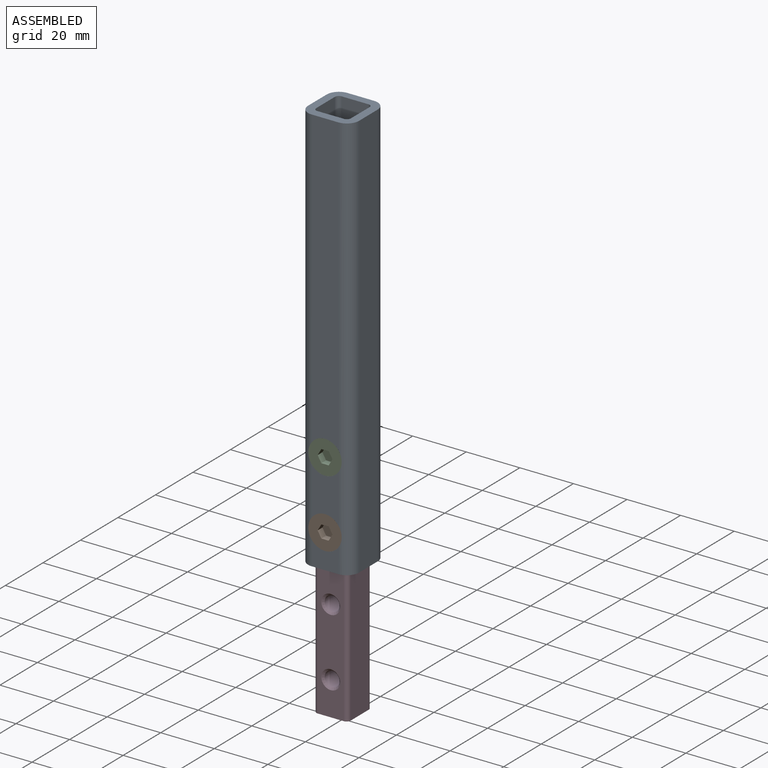
[diagram: assembled view]
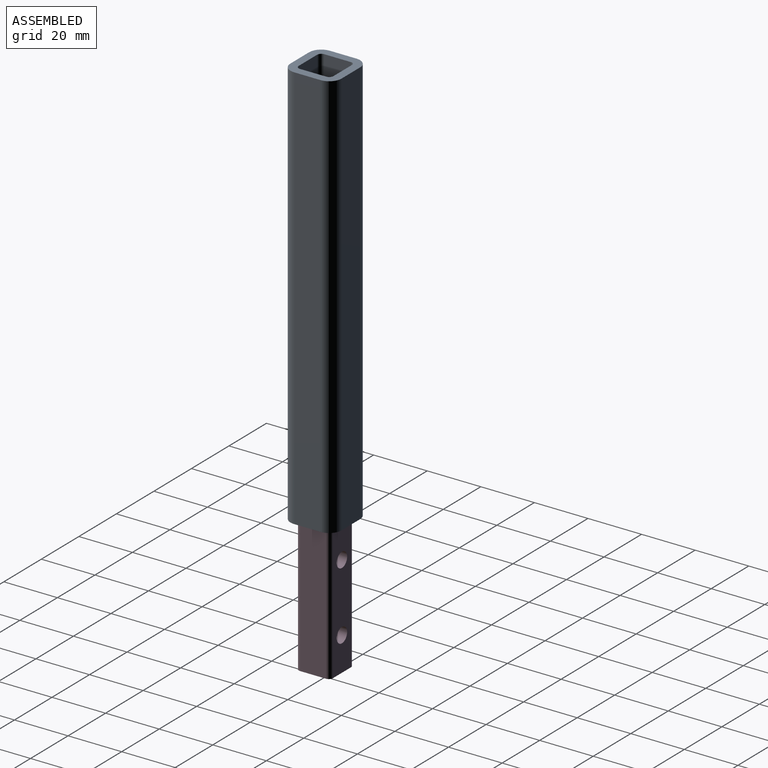
[diagram: assembled view, second angle]
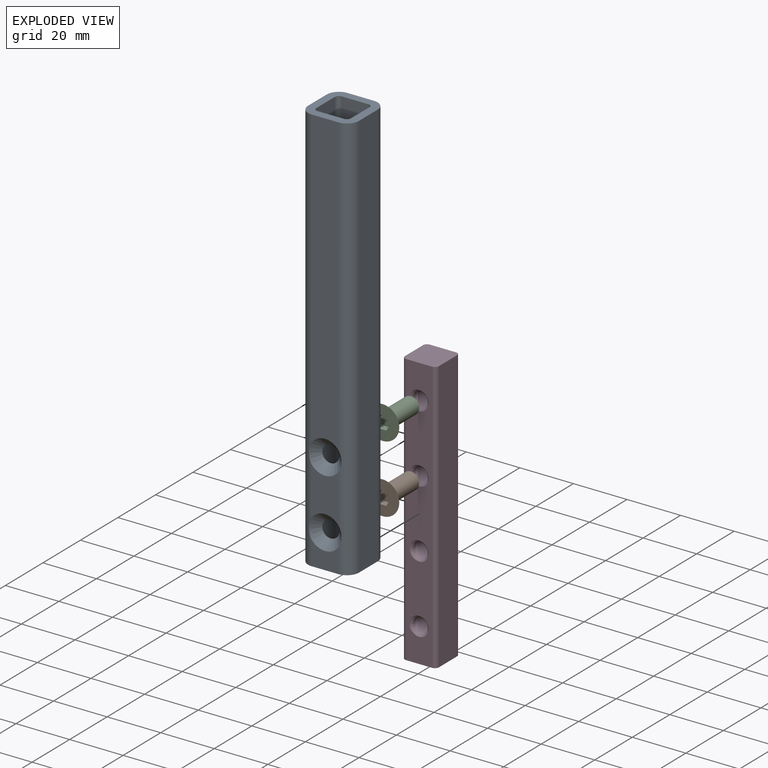
[diagram: exploded view]
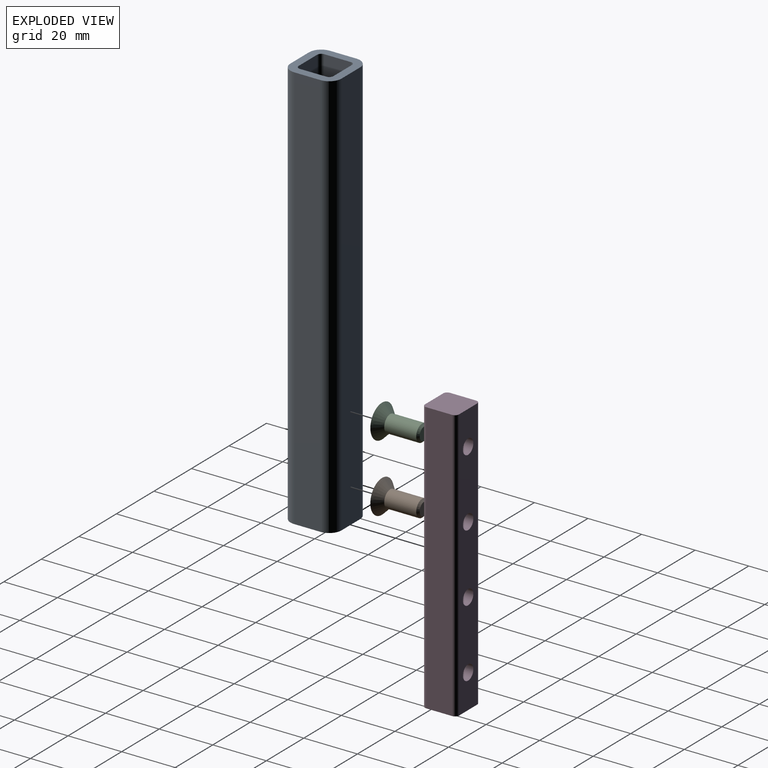
[diagram: exploded view, second angle]
ASSEMBLY  parts=4 mates=3
PART A: 22 faces, bbox 19.1x19.1x152.4 mm
  f0: plane 9.91x8.93mm, normal (0,-1,0), area 71.5mm2, adj f15,f16,f18,f21
  f1: plane 17.87x9.91mm, normal (0,-1,0), area 143mm2, adj f16,f17,f18,f21
  f2: plane 110.53x9.91mm, normal (0,-1,0), area 1077.9mm2, adj f14,f17,f18,f21
  f3: plane 152.4x9.91mm, normal (1,0,0), area 1509.7mm2, adj f14,f15,f18,f19
  f4: plane 152.4x9.91mm, normal (0,1,0), area 1509.7mm2, adj f14,f15,f19,f20
  f5: cylinder r=1.52mm len=152.4mm, axis (0,0,-1), area 364.8mm2, adj f6,f12,f14,f15
  f6: plane 152.4x9.91mm, normal (-1,0,0), area 1509.7mm2, adj f5,f7,f14,f15
  f7: cylinder r=1.52mm len=152.4mm, axis (0,0,-1), area 364.8mm2, adj f6,f8,f14,f15
  f8: plane 152.4x9.91mm, normal (0,1,0), area 1446.3mm2, adj f7,f9,f14,f15,f16,f17
  f9: cylinder r=1.52mm len=152.4mm, axis (0,0,-1), area 364.8mm2, adj f8,f10,f14,f15
  f10: plane 152.4x9.91mm, normal (1,0,0), area 1509.7mm2, adj f9,f11,f14,f15
  f11: cylinder r=1.52mm len=152.4mm, axis (0,0,-1), area 364.8mm2, adj f10,f12,f14,f15
  f12: plane 152.4x9.91mm, normal (0,-1,0), area 1509.7mm2, adj f5,f11,f14,f15
  f13: plane 152.4x9.91mm, normal (-1,0,0), area 1509.7mm2, adj f14,f15,f20,f21
  f14: plane 19.05x19.05mm, normal (0,0,1), area 179.1mm2, adj f2,f3,f4,f5,f6,f7,f8,f9
  f15: plane 19.05x19.05mm, normal (0,0,-1), area 179.1mm2, adj f0,f3,f4,f5,f6,f7,f8,f9
  f16: cone r=6.22mm half-angle=45deg, axis (0,-1,0), area 125.5mm2, adj f0,f1,f8,f18,f21
  f17: cone r=6.22mm half-angle=45deg, axis (0,-1,0), area 125.5mm2, adj f1,f2,f8,f18,f21
  f18: cylinder r=4.57mm len=152.4mm, axis (0,0,1), area 1082.6mm2, adj f0,f1,f2,f3,f14,f15,f16,f17
  f19: cylinder r=4.57mm len=152.4mm, axis (0,0,-1), area 1094.5mm2, adj f3,f4,f14,f15
  f20: cylinder r=4.57mm len=152.4mm, axis (0,0,1), area 1094.5mm2, adj f4,f13,f14,f15
  f21: cylinder r=4.57mm len=152.4mm, axis (0,0,-1), area 1082.6mm2, adj f0,f1,f2,f13,f14,f15,f16,f17
PART B: 12 faces, bbox 12.4x12.4x15.7 mm
  f0: plane 12.45x12.45mm, normal (0,0,1), area 102mm2, adj f3,f4,f5,f6,f7,f8,f9
  f1: cylinder r=3.17mm len=11.94mm, axis (0,0,1), area 238.2mm2, adj f3,f11
  f2: plane 4.83x4.83mm, normal (0,0,-1), area 18.3mm2, adj f11
  f3: cone r=3.17mm half-angle=45deg, axis (0,0,1), area 127.3mm2, adj f0,f1
  f4: plane 2.75x2.54mm, normal (0,-1,0), area 7mm2, adj f0,f5,f9,f10
  f5: plane 2.54x2.38mm, normal (0.87,-0.5,0), area 7mm2, adj f0,f4,f6,f10
  f6: plane 2.54x2.38mm, normal (0.87,0.5,0), area 7mm2, adj f0,f5,f7,f10
  f7: plane 2.75x2.54mm, normal (0,1,0), area 7mm2, adj f0,f6,f8,f10
  f8: plane 2.54x2.38mm, normal (-0.87,0.5,0), area 7mm2, adj f0,f7,f9,f10
  f9: plane 2.54x2.38mm, normal (-0.87,-0.5,0), area 7mm2, adj f0,f4,f8,f10
  f10: plane 5.5x4.76mm, normal (0,0,1), area 19.6mm2, adj f4,f5,f6,f7,f8,f9
  f11: cone r=3.17mm half-angle=45deg, axis (0,0,1), area 18.9mm2, adj f1,f2
PART C: same geometry as B
PART D: 18 faces, bbox 12.7x12.7x101.6 mm
  f0: plane 101.6x9.65mm, normal (1,0,0), area 980.6mm2, adj f1,f7,f8,f9
  f1: cylinder r=1.52mm len=101.6mm, axis (0,0,-1), area 243.2mm2, adj f0,f2,f8,f9
  f2: plane 101.6x9.65mm, normal (0,1,0), area 884.3mm2, adj f1,f3,f8,f9,f10,f11,f12,f13
  f3: cylinder r=1.52mm len=101.6mm, axis (0,0,-1), area 243.2mm2, adj f2,f4,f8,f9
  f4: plane 101.6x9.65mm, normal (-1,0,0), area 980.6mm2, adj f3,f5,f8,f9
  f5: cylinder r=1.52mm len=101.6mm, axis (0,0,-1), area 243.2mm2, adj f4,f6,f8,f9
  f6: plane 101.6x9.65mm, normal (0,-1,0), area 824mm2, adj f5,f7,f8,f9,f14,f15,f16,f17
  f7: cylinder r=1.52mm len=101.6mm, axis (0,0,-1), area 243.2mm2, adj f0,f6,f8,f9
  f8: plane 12.7x12.7mm, normal (0,0,1), area 159.3mm2, adj f0,f1,f2,f3,f4,f5,f6,f7
  f9: plane 12.7x12.7mm, normal (0,0,-1), area 159.3mm2, adj f0,f1,f2,f3,f4,f5,f6,f7
  f10: cylinder r=2.77mm len=11.94mm, axis (0,-1,0), area 207.7mm2, adj f2,f14
  f11: cylinder r=2.77mm len=11.94mm, axis (0,-1,0), area 207.7mm2, adj f2,f15
  f12: cylinder r=2.77mm len=11.94mm, axis (0,-1,0), area 207.7mm2, adj f2,f17
  f13: cylinder r=2.77mm len=11.94mm, axis (0,-1,0), area 207.7mm2, adj f2,f16
  f14: cone r=2.77mm half-angle=45deg, axis (0,-1,0), area 21.3mm2, adj f6,f10
  f15: cone r=2.77mm half-angle=45deg, axis (0,-1,0), area 21.3mm2, adj f6,f11
  f16: cone r=2.77mm half-angle=45deg, axis (0,-1,0), area 21.3mm2, adj f6,f13
  f17: cone r=2.77mm half-angle=45deg, axis (0,-1,0), area 21.3mm2, adj f6,f12
PLACE A at identity fixed
PLACE B rot(axis=(1,0,0),90deg) t=(0,-6.48,12.7)mm
PLACE C rot(axis=(1,0,0),90deg) t=(0,-6.48,38.1)mm
PLACE D t=(0,-0.13,-50.8)mm
MATE fastened A.f17 <-> C.f1  axis (0,-1,0) through (0,-9.53,38.1)mm
MATE fastened A.f16 <-> B.f1  axis (0,-1,0) through (0,-9.53,12.7)mm
MATE fastened D.f10 <-> A.f17  axis (0,-1,0) through (0,-6.48,38.1)mm
